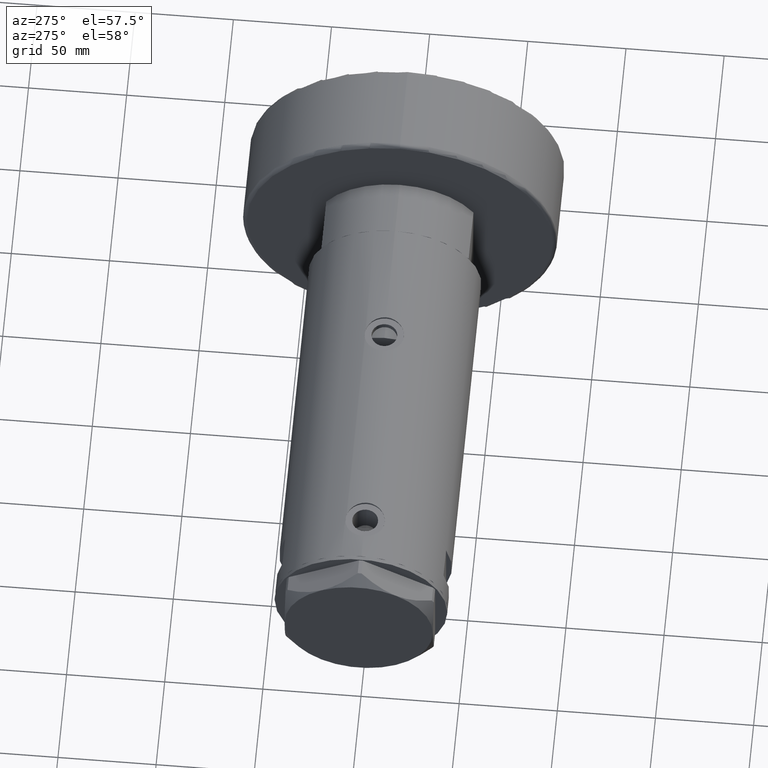
[diagram: clean part render]
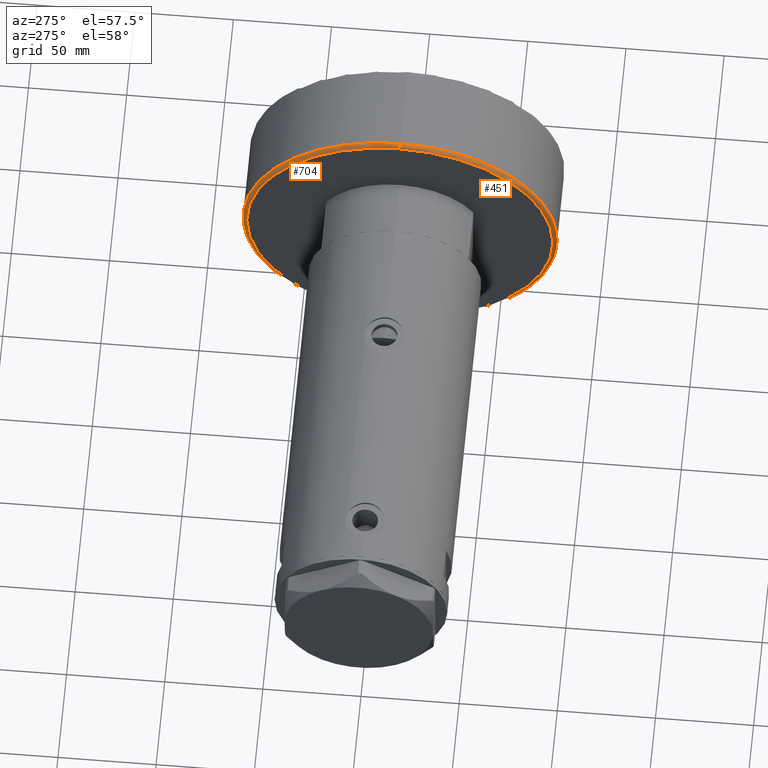
[diagram: same view with one multi-face feature highlighted, each face labeled with its STEP entity id]
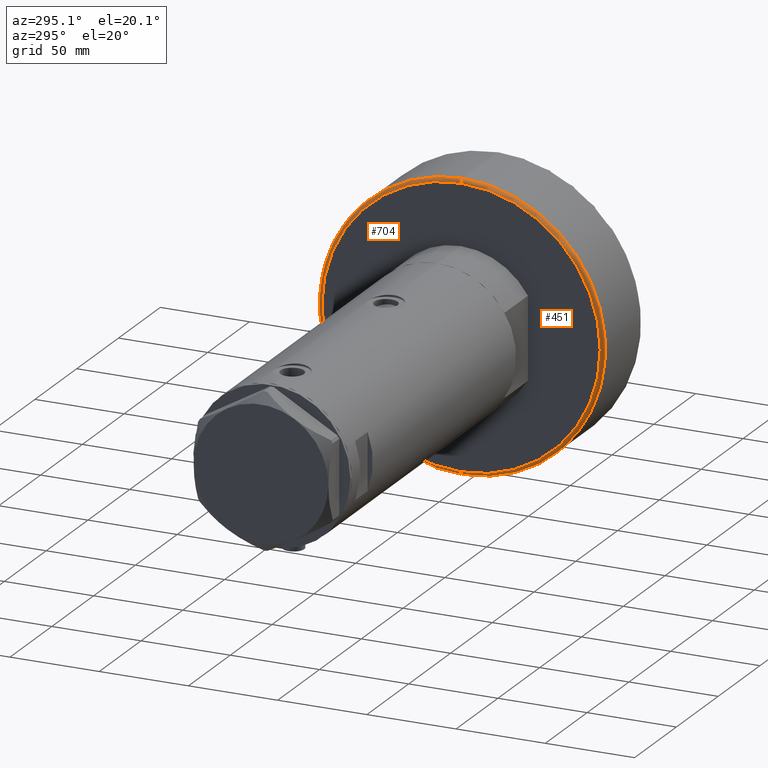
[diagram: same view with one multi-face feature highlighted, each face labeled with its STEP entity id]
A machine part, auxiliary view. The highlighted faces form ONE feature: a constant-radius fillet chain: 2 tangent blend faces with common blend radius 2 mm. The faces share edges in the B-rep.
A second angle (auxiliary view) of the same feature is appended — it is thin or edge-on in the first view.
Their STEP definitions:
[1] entity #451 (Torus):
#13 = EDGE_CURVE ( 'NONE', #3933, #3221, #93, .T. ) ;
#93 = CIRCLE ( 'NONE', #1619, 2.000000000000001776 ) ;
#233 = EDGE_CURVE ( 'NONE', #2651, #3933, #2662, .T. ) ;
#451 = ADVANCED_FACE ( 'NONE', ( #4138 ), #661, .T. ) ;
#547 = DIRECTION ( 'NONE',  ( -1.000000000000000000, 1.224646799147349509E-16, 0.000000000000000000 ) ) ;
#661 = TOROIDAL_SURFACE ( 'NONE', #3131, 78.00000000000000000, 2.000000000000000000 ) ;
#707 = DIRECTION ( 'NONE',  ( 0.000000000000000000, -1.000000000000000000, 0.000000000000000000 ) ) ;
#840 = AXIS2_PLACEMENT_3D ( 'NONE', #4927, #707, #1421 ) ;
#1032 = DIRECTION ( 'NONE',  ( 0.000000000000000000, 0.000000000000000000, 1.000000000000000000 ) ) ;
#1320 = VERTEX_POINT ( 'NONE', #4512 ) ;
#1421 = DIRECTION ( 'NONE',  ( 0.000000000000000000, 0.000000000000000000, -1.000000000000000000 ) ) ;
#1619 = AXIS2_PLACEMENT_3D ( 'NONE', #2103, #2790, #547 ) ;
#1631 = CARTESIAN_POINT ( 'NONE',  ( 0.000000000000000000, 0.000000000000000000, 0.000000000000000000 ) ) ;
#1993 = ORIENTED_EDGE ( 'NONE', *, *, #233, .F. ) ;
#2103 = CARTESIAN_POINT ( 'NONE',  ( -78.00000000000000000, 9.552245033349355756E-15, 2.000000000000001776 ) ) ;
#2223 = CIRCLE ( 'NONE', #3562, 80.00000000000000000 ) ;
#2367 = CIRCLE ( 'NONE', #840, 2.000000000000000000 ) ;
#2417 = EDGE_CURVE ( 'NONE', #2651, #1320, #2367, .T. ) ;
#2559 = DIRECTION ( 'NONE',  ( 1.000000000000000000, 0.000000000000000000, 0.000000000000000000 ) ) ;
#2611 = DIRECTION ( 'NONE',  ( 1.000000000000000000, 0.000000000000000000, 0.000000000000000000 ) ) ;
#2612 = ORIENTED_EDGE ( 'NONE', *, *, #2417, .T. ) ;
#2639 = ORIENTED_EDGE ( 'NONE', *, *, #13, .F. ) ;
#2651 = VERTEX_POINT ( 'NONE', #4921 ) ;
#2662 = CIRCLE ( 'NONE', #3051, 78.00000000000000000 ) ;
#2790 = DIRECTION ( 'NONE',  ( 1.224646799147353207E-16, 1.000000000000000000, -0.000000000000000000 ) ) ;
#2931 = CARTESIAN_POINT ( 'NONE',  ( 0.000000000000000000, 0.000000000000000000, 2.000000000000001776 ) ) ;
#2949 = CARTESIAN_POINT ( 'NONE',  ( -80.00000000000000000, 0.000000000000000000, 2.000000000000001776 ) ) ;
#3051 = AXIS2_PLACEMENT_3D ( 'NONE', #1631, #3149, #4312 ) ;
#3131 = AXIS2_PLACEMENT_3D ( 'NONE', #3715, #4079, #2611 ) ;
#3149 = DIRECTION ( 'NONE',  ( -0.000000000000000000, -0.000000000000000000, -1.000000000000000000 ) ) ;
#3221 = VERTEX_POINT ( 'NONE', #2949 ) ;
#3562 = AXIS2_PLACEMENT_3D ( 'NONE', #2931, #1032, #2559 ) ;
#3614 = ORIENTED_EDGE ( 'NONE', *, *, #4446, .F. ) ;
#3635 = CARTESIAN_POINT ( 'NONE',  ( -78.00000000000000000, 9.674709713264090904E-15, 0.000000000000000000 ) ) ;
#3715 = CARTESIAN_POINT ( 'NONE',  ( 0.000000000000000000, 0.000000000000000000, 2.000000000000001776 ) ) ;
#3933 = VERTEX_POINT ( 'NONE', #3635 ) ;
#4079 = DIRECTION ( 'NONE',  ( 0.000000000000000000, 0.000000000000000000, 1.000000000000000000 ) ) ;
#4138 = FACE_OUTER_BOUND ( 'NONE', #4477, .T. ) ;
#4312 = DIRECTION ( 'NONE',  ( 1.000000000000000000, 0.000000000000000000, 0.000000000000000000 ) ) ;
#4446 = EDGE_CURVE ( 'NONE', #3221, #1320, #2223, .T. ) ;
#4477 = EDGE_LOOP ( 'NONE', ( #2639, #1993, #2612, #3614 ) ) ;
#4512 = CARTESIAN_POINT ( 'NONE',  ( 80.00000000000000000, 9.797174393178826052E-15, 2.000000000000001776 ) ) ;
#4921 = CARTESIAN_POINT ( 'NONE',  ( 78.00000000000000000, 0.000000000000000000, 0.000000000000000000 ) ) ;
#4927 = CARTESIAN_POINT ( 'NONE',  ( 78.00000000000000000, 0.000000000000000000, 2.000000000000001776 ) ) ;
[2] entity #704 (Torus):
#13 = EDGE_CURVE ( 'NONE', #3933, #3221, #93, .T. ) ;
#93 = CIRCLE ( 'NONE', #1619, 2.000000000000001776 ) ;
#122 = CARTESIAN_POINT ( 'NONE',  ( 0.000000000000000000, 0.000000000000000000, 2.000000000000001776 ) ) ;
#266 = AXIS2_PLACEMENT_3D ( 'NONE', #122, #1573, #4632 ) ;
#547 = DIRECTION ( 'NONE',  ( -1.000000000000000000, 1.224646799147349509E-16, 0.000000000000000000 ) ) ;
#704 = ADVANCED_FACE ( 'NONE', ( #4588 ), #1869, .T. ) ;
#707 = DIRECTION ( 'NONE',  ( 0.000000000000000000, -1.000000000000000000, 0.000000000000000000 ) ) ;
#722 = EDGE_LOOP ( 'NONE', ( #947, #3675, #2580, #1266 ) ) ;
#763 = CIRCLE ( 'NONE', #4574, 78.00000000000000000 ) ;
#840 = AXIS2_PLACEMENT_3D ( 'NONE', #4927, #707, #1421 ) ;
#947 = ORIENTED_EDGE ( 'NONE', *, *, #4032, .F. ) ;
#1204 = CARTESIAN_POINT ( 'NONE',  ( 0.000000000000000000, 0.000000000000000000, 0.000000000000000000 ) ) ;
#1266 = ORIENTED_EDGE ( 'NONE', *, *, #2417, .F. ) ;
#1320 = VERTEX_POINT ( 'NONE', #4512 ) ;
#1421 = DIRECTION ( 'NONE',  ( 0.000000000000000000, 0.000000000000000000, -1.000000000000000000 ) ) ;
#1573 = DIRECTION ( 'NONE',  ( 0.000000000000000000, 0.000000000000000000, 1.000000000000000000 ) ) ;
#1619 = AXIS2_PLACEMENT_3D ( 'NONE', #2103, #2790, #547 ) ;
#1869 = TOROIDAL_SURFACE ( 'NONE', #266, 78.00000000000000000, 2.000000000000000000 ) ;
#2103 = CARTESIAN_POINT ( 'NONE',  ( -78.00000000000000000, 9.552245033349355756E-15, 2.000000000000001776 ) ) ;
#2334 = CARTESIAN_POINT ( 'NONE',  ( 0.000000000000000000, 0.000000000000000000, 2.000000000000001776 ) ) ;
#2367 = CIRCLE ( 'NONE', #840, 2.000000000000000000 ) ;
#2417 = EDGE_CURVE ( 'NONE', #2651, #1320, #2367, .T. ) ;
#2580 = ORIENTED_EDGE ( 'NONE', *, *, #3647, .F. ) ;
#2651 = VERTEX_POINT ( 'NONE', #4921 ) ;
#2733 = DIRECTION ( 'NONE',  ( -0.000000000000000000, -0.000000000000000000, -1.000000000000000000 ) ) ;
#2790 = DIRECTION ( 'NONE',  ( 1.224646799147353207E-16, 1.000000000000000000, -0.000000000000000000 ) ) ;
#2949 = CARTESIAN_POINT ( 'NONE',  ( -80.00000000000000000, 0.000000000000000000, 2.000000000000001776 ) ) ;
#3221 = VERTEX_POINT ( 'NONE', #2949 ) ;
#3465 = DIRECTION ( 'NONE',  ( 0.000000000000000000, 0.000000000000000000, 1.000000000000000000 ) ) ;
#3496 = DIRECTION ( 'NONE',  ( 1.000000000000000000, 0.000000000000000000, 0.000000000000000000 ) ) ;
#3635 = CARTESIAN_POINT ( 'NONE',  ( -78.00000000000000000, 9.674709713264090904E-15, 0.000000000000000000 ) ) ;
#3637 = CIRCLE ( 'NONE', #3655, 80.00000000000000000 ) ;
#3647 = EDGE_CURVE ( 'NONE', #1320, #3221, #3637, .T. ) ;
#3655 = AXIS2_PLACEMENT_3D ( 'NONE', #2334, #3465, #3496 ) ;
#3675 = ORIENTED_EDGE ( 'NONE', *, *, #13, .T. ) ;
#3933 = VERTEX_POINT ( 'NONE', #3635 ) ;
#4032 = EDGE_CURVE ( 'NONE', #3933, #2651, #763, .T. ) ;
#4512 = CARTESIAN_POINT ( 'NONE',  ( 80.00000000000000000, 9.797174393178826052E-15, 2.000000000000001776 ) ) ;
#4574 = AXIS2_PLACEMENT_3D ( 'NONE', #1204, #2733, #4607 ) ;
#4588 = FACE_OUTER_BOUND ( 'NONE', #722, .T. ) ;
#4607 = DIRECTION ( 'NONE',  ( 1.000000000000000000, 0.000000000000000000, 0.000000000000000000 ) ) ;
#4632 = DIRECTION ( 'NONE',  ( 1.000000000000000000, 0.000000000000000000, 0.000000000000000000 ) ) ;
#4921 = CARTESIAN_POINT ( 'NONE',  ( 78.00000000000000000, 0.000000000000000000, 0.000000000000000000 ) ) ;
#4927 = CARTESIAN_POINT ( 'NONE',  ( 78.00000000000000000, 0.000000000000000000, 2.000000000000001776 ) ) ;